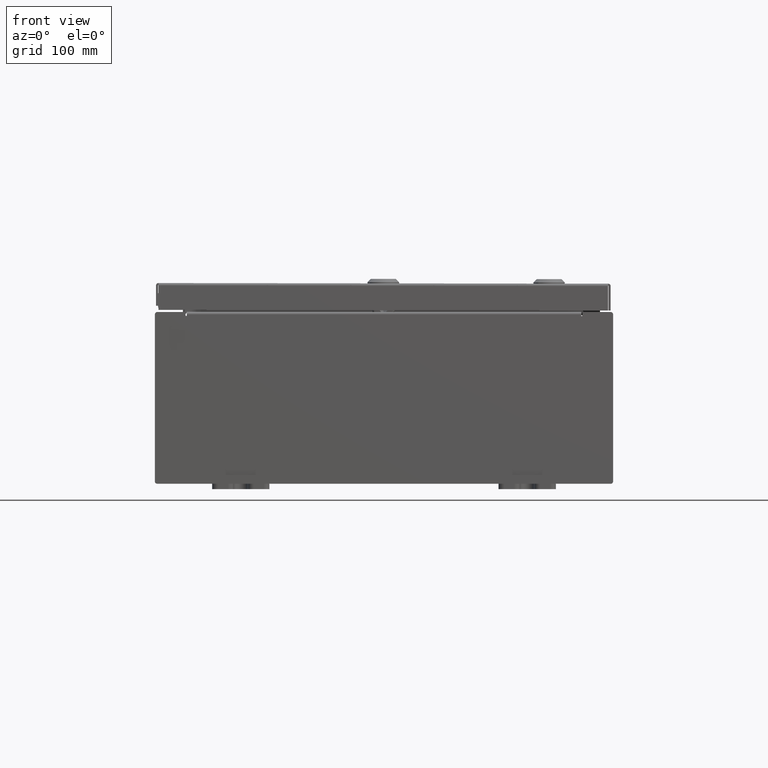
[diagram: clean part render]
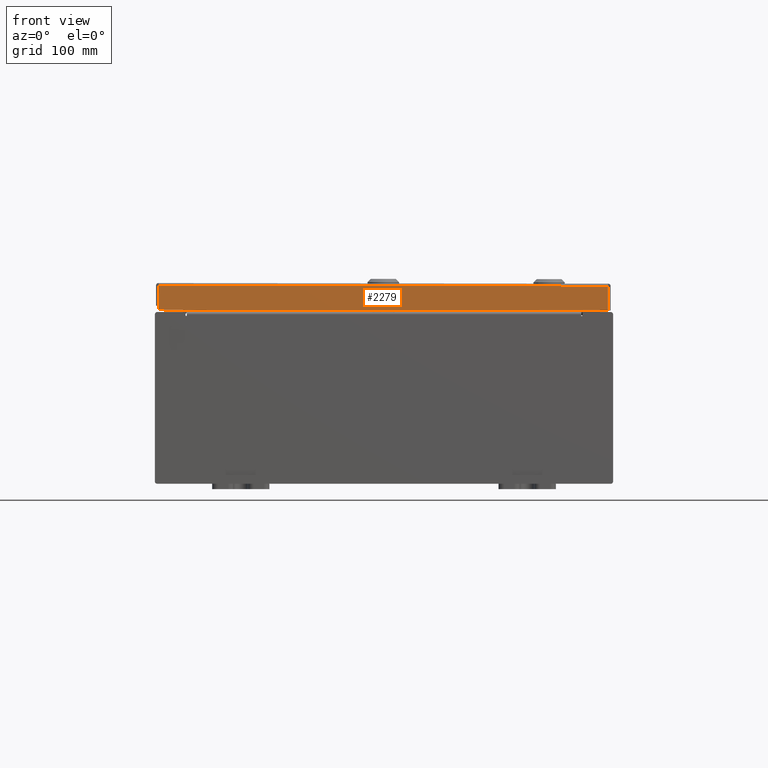
[diagram: same view with one face highlighted and labeled with its STEP entity id]
A machine part, front view. The second image highlights one B-rep face of the part: STEP entity #2279.
In plain terms, the highlighted planar face has unit normal (0, 1, -0).
Its self-contained STEP definition (entity closure, byte-faithful):
#1423 = ORIENTED_EDGE ( 'NONE', *, *, #19148, .F. ) ;
#1766 = FACE_OUTER_BOUND ( 'NONE', #8838, .T. ) ;
#2245 = CARTESIAN_POINT ( 'NONE',  ( 7.937500000000000000, -7.937500000000003600, -0.9376999999999997600 ) ) ;
#2279 = ADVANCED_FACE ( 'NONE', ( #1766 ), #24144, .F. ) ;
#2721 = DIRECTION ( 'NONE',  ( -0.0000000000000000000, -3.798629886902798700E-015, -1.000000000000000000 ) ) ;
#4347 = ORIENTED_EDGE ( 'NONE', *, *, #18159, .T. ) ;
#4846 = LINE ( 'NONE', #36539, #54825 ) ;
#7099 = DIRECTION ( 'NONE',  ( -1.000000000000000000, 8.758115402030108600E-047, 1.204594390907076900E-016 ) ) ;
#7387 = VERTEX_POINT ( 'NONE', #55264 ) ;
#8838 = EDGE_LOOP ( 'NONE', ( #48575, #4347, #1423, #46717 ) ) ;
#10887 = DIRECTION ( 'NONE',  ( 0.0000000000000000000, -3.798629886902798700E-015, -1.000000000000000000 ) ) ;
#14087 = EDGE_CURVE ( 'NONE', #7387, #14540, #4846, .T. ) ;
#14486 = VECTOR ( 'NONE', #10887, 39.37007874015748100 ) ;
#14540 = VERTEX_POINT ( 'NONE', #43480 ) ;
#15654 = VERTEX_POINT ( 'NONE', #48159 ) ;
#18159 = EDGE_CURVE ( 'NONE', #15654, #42287, #50046, .T. ) ;
#19148 = EDGE_CURVE ( 'NONE', #14540, #42287, #40119, .T. ) ;
#24144 = PLANE ( 'NONE',  #47606 ) ;
#25572 = EDGE_CURVE ( 'NONE', #15654, #7387, #51357, .T. ) ;
#27274 = VECTOR ( 'NONE', #7099, 39.37007874015748100 ) ;
#33414 = CARTESIAN_POINT ( 'NONE',  ( 3.632047802322981100E-030, -7.937500000000000000, 3.041243838330255000E-014 ) ) ;
#33833 = DIRECTION ( 'NONE',  ( 0.0000000000000000000, 3.798629886902798700E-015, 1.000000000000000000 ) ) ;
#34975 = CARTESIAN_POINT ( 'NONE',  ( -7.848657864376269400, -7.937500000000000000, 3.041243838330255000E-014 ) ) ;
#36539 = CARTESIAN_POINT ( 'NONE',  ( 7.848657864376269400, -7.937500000000000000, -0.07469999999999972500 ) ) ;
#40119 = LINE ( 'NONE', #2245, #27274 ) ;
#42287 = VERTEX_POINT ( 'NONE', #50154 ) ;
#43480 = CARTESIAN_POINT ( 'NONE',  ( 7.848657864376269400, -7.937500000000003600, -0.9376999999999997600 ) ) ;
#46717 = ORIENTED_EDGE ( 'NONE', *, *, #14087, .F. ) ;
#46962 = CARTESIAN_POINT ( 'NONE',  ( 7.937500000000000000, -7.937500000000000000, -0.08769999999999997200 ) ) ;
#47606 = AXIS2_PLACEMENT_3D ( 'NONE', #33414, #48256, #33833 ) ;
#48159 = CARTESIAN_POINT ( 'NONE',  ( -7.848657864376269400, -7.937500000000000000, -0.08769999999999997200 ) ) ;
#48256 = DIRECTION ( 'NONE',  ( -4.575808254895093900E-031, 1.000000000000000000, -3.798629886902798700E-015 ) ) ;
#48575 = ORIENTED_EDGE ( 'NONE', *, *, #25572, .F. ) ;
#50046 = LINE ( 'NONE', #34975, #14486 ) ;
#50154 = CARTESIAN_POINT ( 'NONE',  ( -7.848657864376269400, -7.937500000000003600, -0.9376999999999977600 ) ) ;
#51357 = LINE ( 'NONE', #46962, #62670 ) ;
#51812 = DIRECTION ( 'NONE',  ( 1.000000000000000000, 4.575808254895093900E-031, -1.755275756154839100E-045 ) ) ;
#54825 = VECTOR ( 'NONE', #2721, 39.37007874015748100 ) ;
#55264 = CARTESIAN_POINT ( 'NONE',  ( 7.848657864376269400, -7.937500000000000000, -0.08769999999999997200 ) ) ;
#62670 = VECTOR ( 'NONE', #51812, 39.37007874015748100 ) ;